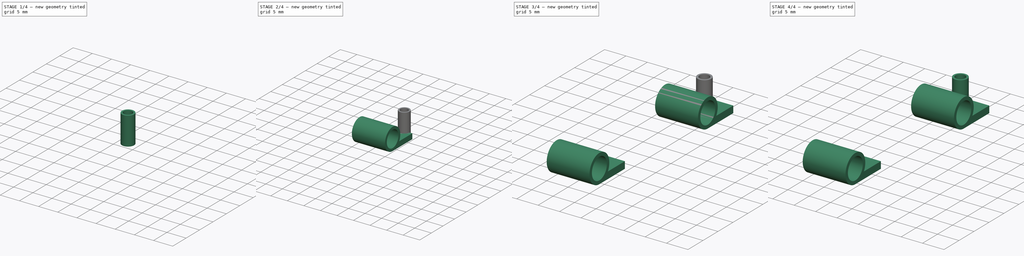
[diagram: build sequence overview — one tinted view per stage of 4, left to right]
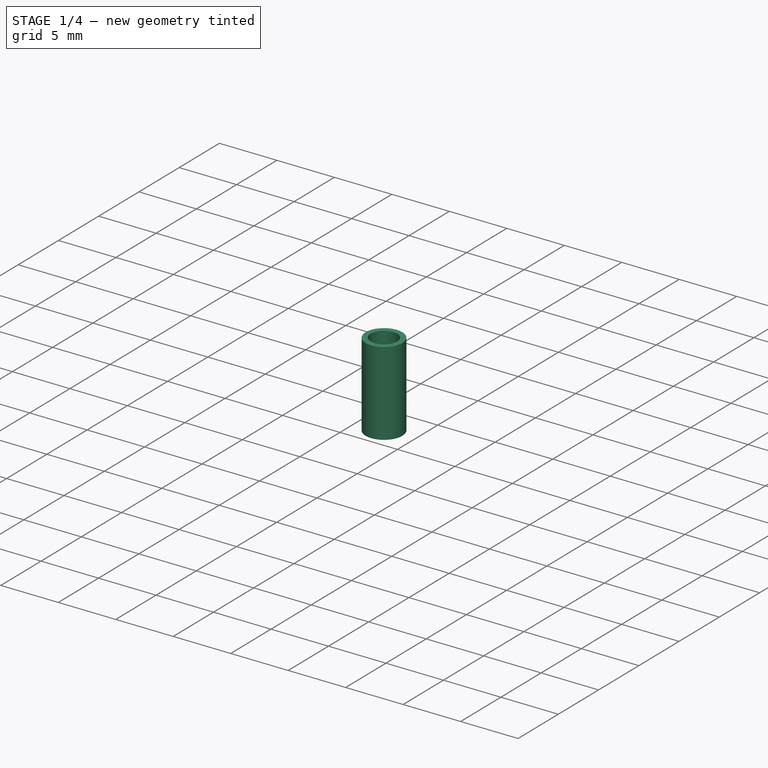
[diagram: stage 1 of 4 — iso view after this stage's code; geometry added in this stage tinted green]
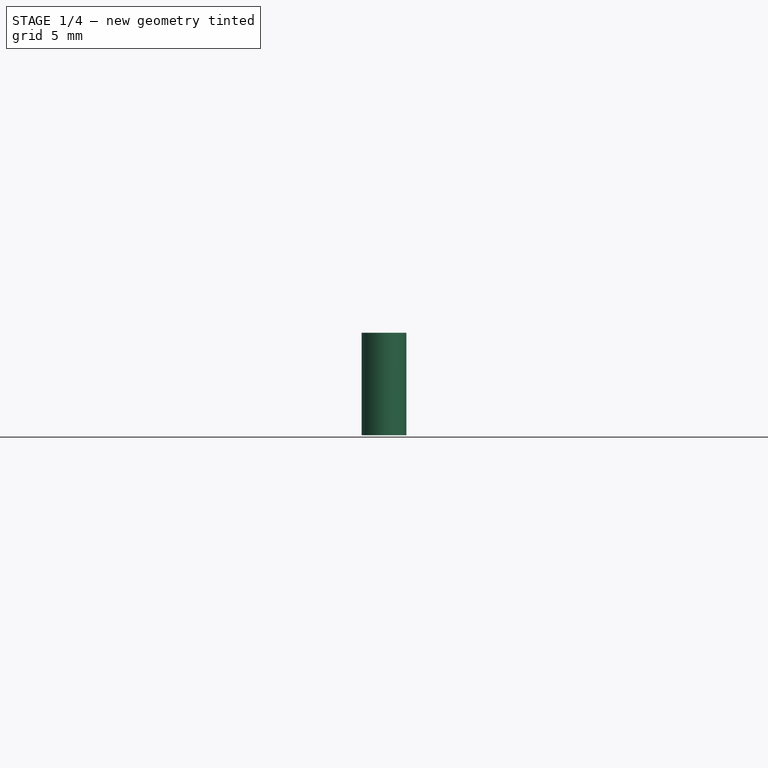
[diagram: stage 1 of 4 — front view after this stage's code; geometry added in this stage tinted green]
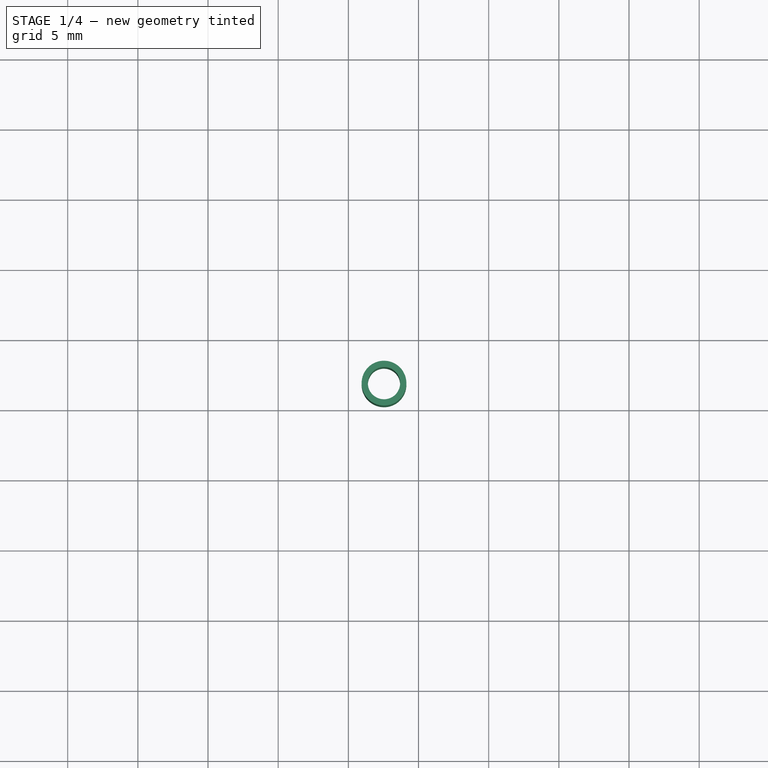
[diagram: stage 1 of 4 — top view after this stage's code; geometry added in this stage tinted green]
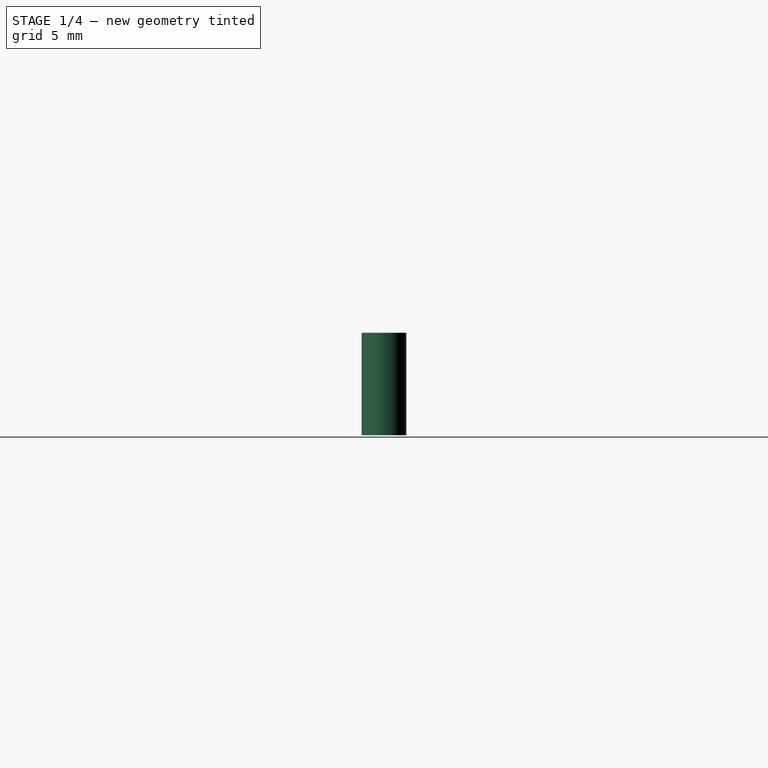
[diagram: stage 1 of 4 — right view after this stage's code; geometry added in this stage tinted green]
FCSTD DOCUMENT  (FreeCAD 0.19R)
Label: ESP32-S2_TFT_Feather_full
License: All rights reserved
LicenseURL: http://en.wikipedia.org/wiki/All_rights_reserved
objects: PartDesign::Body×8, PartDesign::FeatureBase×6, Sketcher::SketchObject×3, PartDesign::Pad×3, Part::Feature×2, App::FeaturePython×2, PartDesign::Hole×1, Part::FeaturePython×1
note: 28 computed .brp shape members not serialized (recipe doc carries the construction recipe); baked Part::Feature solids carry a one-line shape summary decoded from their .brp

FEATURE [Part::Feature] Feature  label="5300 ESP32-S2 TFT Feather"
  Placement = pos=(17.4187,1.81213,-35.822) rot=(0,0,1;0rad)
  shape: bbox 51.89 x 22.87 x 8.932 mm, 3634 faces, 158 solids (baked)
FEATURE [Part::Feature] Feature001  label="PCB"
  Placement = pos=(0,50,0) rot=(0,0,1;0rad)
  shape: bbox 51.89 x 22.87 x 8.932 mm, 3634 faces, 158 solids (baked)
FEATURE [Sketcher::SketchObject] Sketch
  FullyConstrained = true
  MapMode = 5
  Support = -> [XY_Plane]
  sketch-geometry (2):
    g0: Circle CenterX=2.54 CenterY=1.84 CenterZ=0 NormalX=0 NormalY=0 NormalZ=1 AngleXU=0 Radius=1.595
    g1: Circle CenterX=2.54 CenterY=1.84 CenterZ=0 NormalX=0 NormalY=0 NormalZ=1 AngleXU=0 Radius=1.15
  constraints (5):
    c: DistanceX(g0) = 2.54
    c: DistanceY(g0) = 1.84
    c: Diameter(g0) = 3.19
    c: Coincident(g1,g0)
    c: Diameter(g1) = 2.3
FEATURE [PartDesign::Pad] Pad
  Direction = (1,1,1)
  Length = 7.3
  Length2 = 100
  Profile = -> Sketch
  Type = 0
FEATURE [PartDesign::Pad] Pad001
  BaseFeature = -> Pad
  Direction = (1,1,1)
  Length = 7.2
  Length2 = 100
  Profile = -> Sketch
  Type = 0
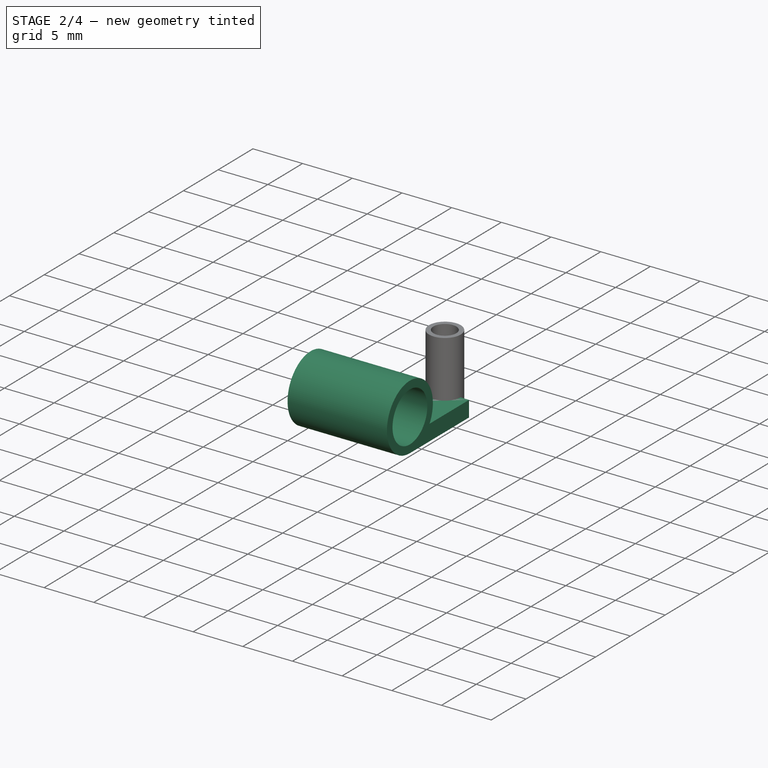
[diagram: stage 2 of 4 — iso view after this stage's code; geometry added in this stage tinted green]
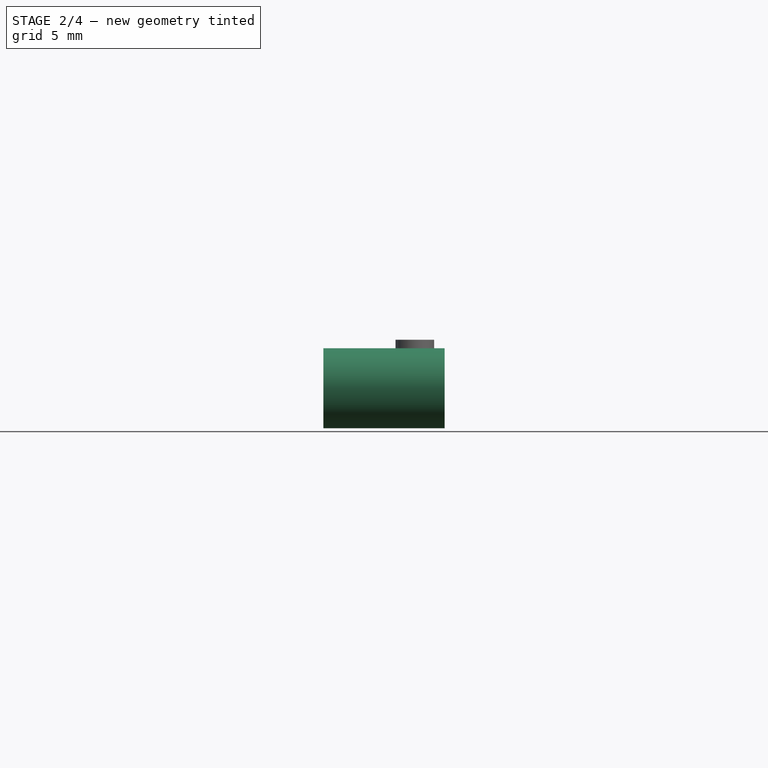
[diagram: stage 2 of 4 — front view after this stage's code; geometry added in this stage tinted green]
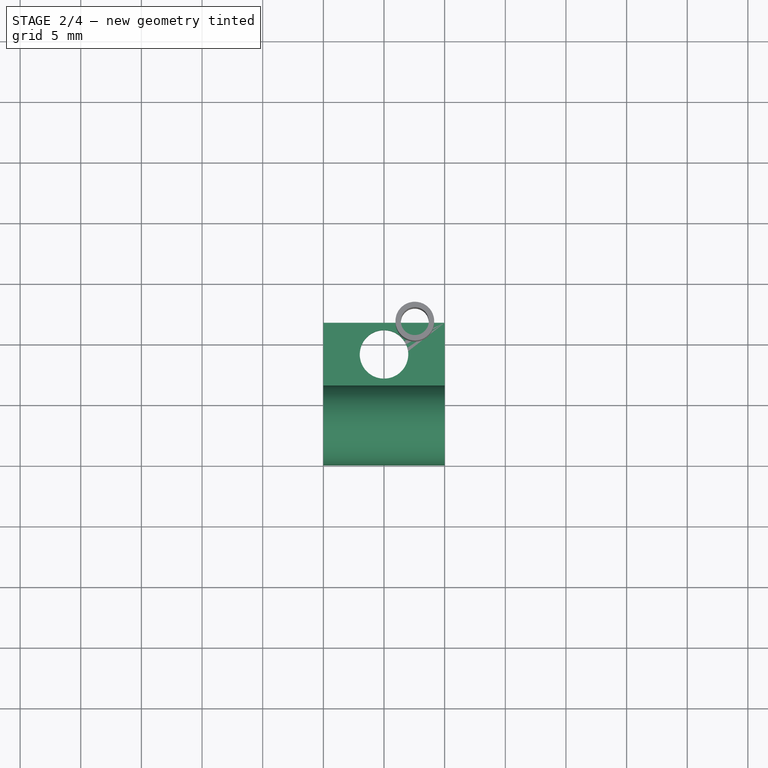
[diagram: stage 2 of 4 — top view after this stage's code; geometry added in this stage tinted green]
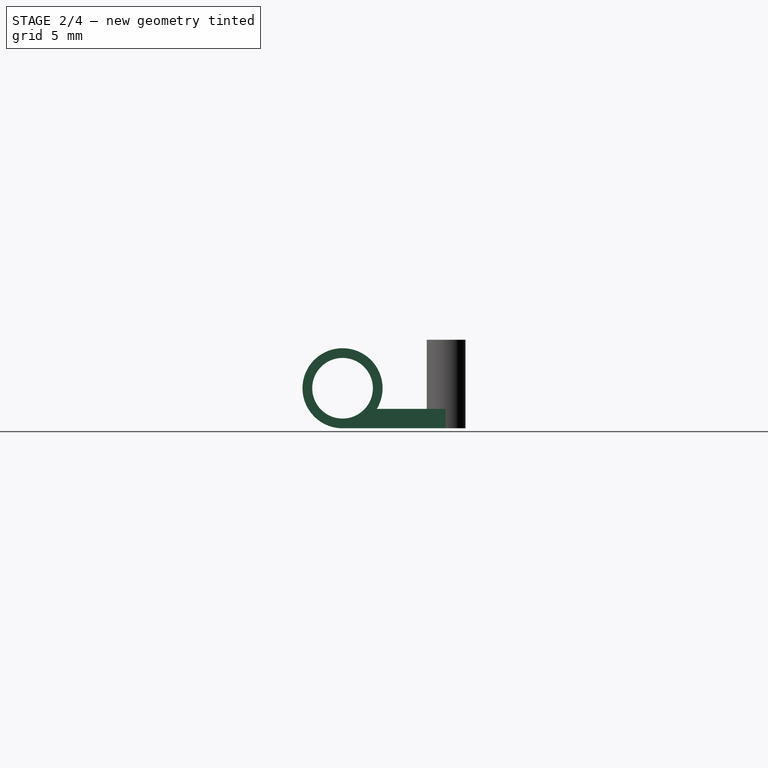
[diagram: stage 2 of 4 — right view after this stage's code; geometry added in this stage tinted green]
FEATURE [PartDesign::Body] Body002  label="Distanzhülse 3"
  BaseFeature = -> Pad001
  Group = -> [Clone001]
  Origin = -> Origin002
  Placement = pos=(20,-20,0) rot=(0,0,1;0rad)
  Tip = -> Clone001
FEATURE [PartDesign::FeatureBase] Clone002
  BaseFeature = -> Body
FEATURE [PartDesign::Body] Body003  label="Distanzhülse 4"
  BaseFeature = -> Body
  Group = -> [Clone002]
  Origin = -> Origin003
  Placement = pos=(30,-20,0) rot=(0,0,1;0rad)
  Tip = -> Clone002
FEATURE [Sketcher::SketchObject] Sketch001
  FullyConstrained = true
  MapMode = 5
  Placement = pos=(0,0,0) rot=(0.57735,0.57735,0.57735;2.0944rad)
  Support = -> [YZ_Plane004]
  sketch-geometry (6):
    g0: LineSegment StartX=1.8 StartY=0 StartZ=0 EndX=-6.7 EndY=0 EndZ=0
    g1: LineSegment StartX=-6.7 StartY=0 StartZ=0 EndX=-6.7 EndY=0.8 EndZ=0
    g2: LineSegment StartX=-3.87157 StartY=1.6 StartZ=0 EndX=1.8 EndY=1.6 EndZ=0
    g3: LineSegment StartX=1.8 StartY=1.6 StartZ=0 EndX=1.8 EndY=0 EndZ=0
    g4: ArcOfCircle CenterX=-6.7 CenterY=3.3 CenterZ=0 NormalX=0 NormalY=0 NormalZ=1 AngleXU=0 Radius=3.3 StartAngle=5.742 EndAngle=10.9956
    g5: Circle CenterX=-6.7 CenterY=3.3 CenterZ=0 NormalX=0 NormalY=0 NormalZ=1 AngleXU=0 Radius=2.5
  constraints (18):
    c: Coincident(g0,g1)
    c: Coincident(g2,g3)
    c: Coincident(g3,g0)
    c: Horizontal(g0)
    c: Horizontal(g2)
    c: Vertical(g1)
    c: Vertical(g3)
    c: PointOnObject(g0,g-1)
    c: DistanceX(g-1,g0) = 1.8
    c: DistanceX(g0,g0) = 8.5
    c: DistanceY(g0,g2) = 1.6
    c: Coincident(g5,g4)
    c: Vertical(g0,g4)
    c: Radius(g4) = 3.3
    c: Radius(g5) = 2.5
    c: PointOnObject(g1,g5)
    c: Coincident(g4,g2)
    c: Coincident(g4,g0)
FEATURE [PartDesign::Pad] Pad002
  Direction = (1,1,1)
  Length = 10
  Length2 = 100
  Midplane = true
  Placement = pos=(0,0,0) rot=(0.57735,0.57735,0.57735;2.0944rad)
  Profile = -> Sketch001
  Type = 0
FEATURE [Sketcher::SketchObject] Sketch002
  FullyConstrained = true
  MapMode = 5
  Placement = pos=(-4e-16,7e-16,1.6) rot=(0,0,-1;1.5708rad)
  Support = -> [Pad002]
  sketch-geometry (1):
    g0: Circle CenterX=0.8 CenterY=0 CenterZ=0 NormalX=0 NormalY=0 NormalZ=1 AngleXU=0 Radius=2.1
  constraints (3):
    c: Horizontal(g0,g-1)
    c: DistanceX(g-1,g0) = 0.8
    c: Radius(g0) = 2.1
FEATURE [PartDesign::Hole] Hole
  BaseFeature = -> Pad002
  Depth = 25
  DepthType = 0
  Diameter = 4
  DrillForDepth = false
  DrillPoint = 1
  DrillPointAngle = 118
  HoleCutCountersinkAngle = 90
  HoleCutCustomValues = false
  HoleCutDepth = 0
  HoleCutDiameter = 6.1
  HoleCutType = 0
  ModelActualThread = false
  Placement = pos=(0,0,0) rot=(0.57735,0.57735,0.57735;2.0944rad)
  Profile = -> Sketch002
  Tapered = false
  TaperedAngle = 90
  ThreadAngle = 0
  ThreadClass = 0
  ThreadCutOffInner = 0
  ThreadCutOffOuter = 0
  ThreadDirection = 0
  ThreadFit = 0
  ThreadPitch = 0
  ThreadSize = 0
  ThreadType = 0
  Threaded = false
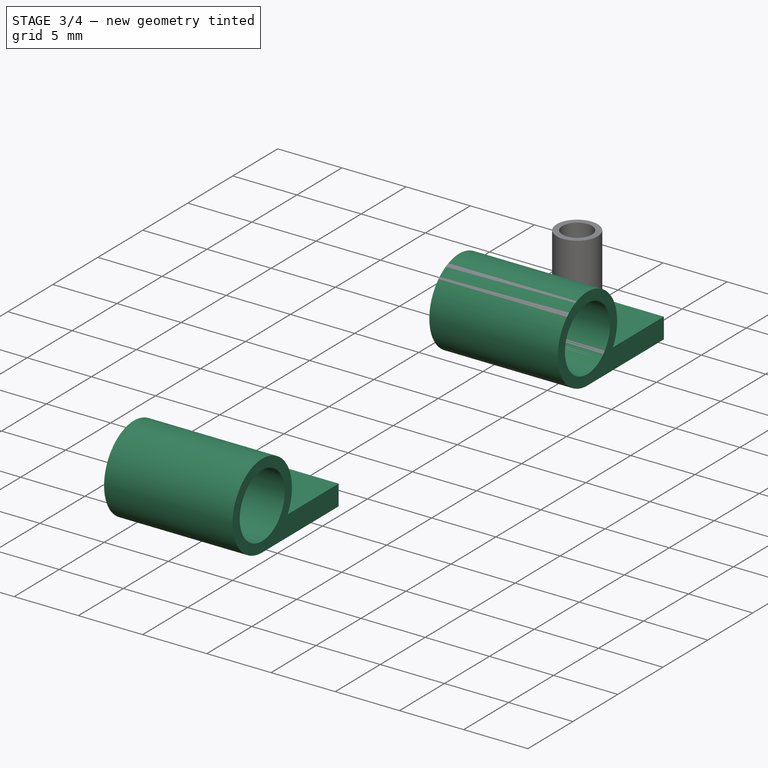
[diagram: stage 3 of 4 — iso view after this stage's code; geometry added in this stage tinted green]
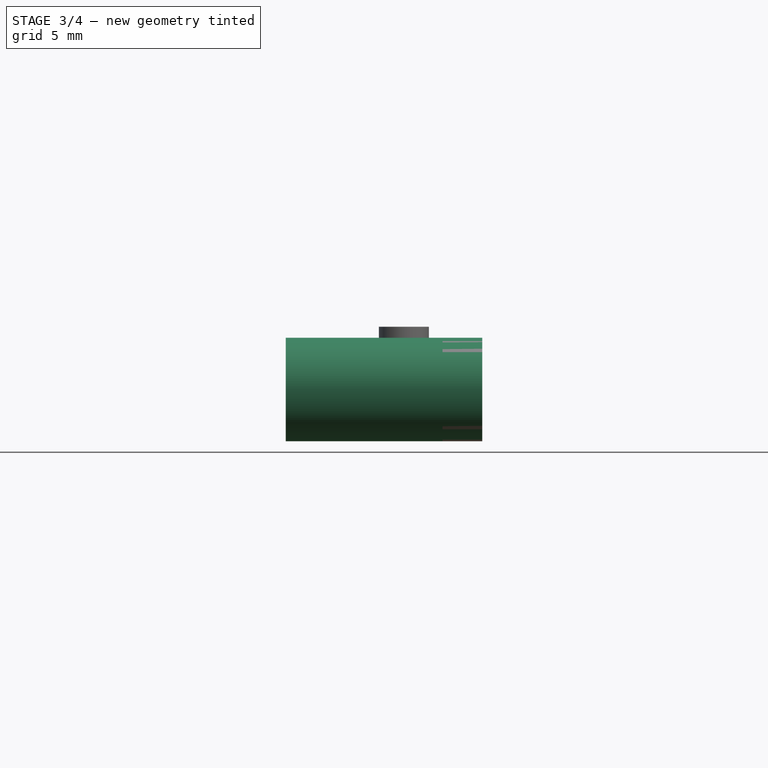
[diagram: stage 3 of 4 — front view after this stage's code; geometry added in this stage tinted green]
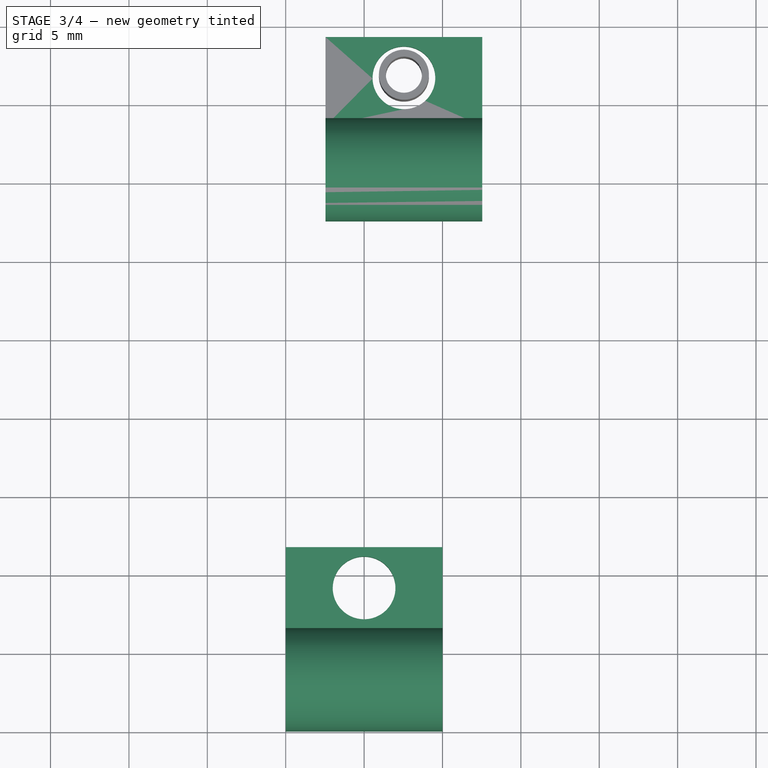
[diagram: stage 3 of 4 — top view after this stage's code; geometry added in this stage tinted green]
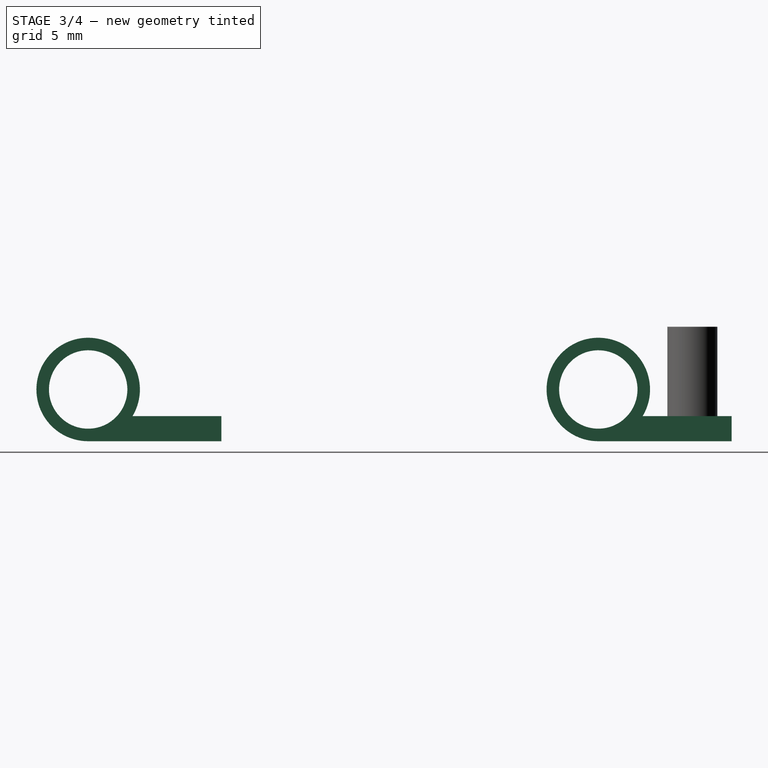
[diagram: stage 3 of 4 — right view after this stage's code; geometry added in this stage tinted green]
FEATURE [PartDesign::Body] Body004  label="Hellermann Befestigungschelle 211-60019 1"
  Group = -> [Sketch001,Pad002,Sketch002,Hole]
  Origin = -> Origin004
  Tip = -> Hole
FEATURE [PartDesign::FeatureBase] Clone003
  BaseFeature = -> Body004
  Placement = pos=(2.54,2.54,0) rot=(0,0,1;0rad)
FEATURE [PartDesign::Body] Body005  label="Hellermann Befestigungschelle 211-60019 2"
  BaseFeature = -> Body004
  Group = -> [Clone003]
  Origin = -> Origin005
  Placement = pos=(20,-30,0) rot=(0,0,1;0rad)
  Tip = -> Clone003
FEATURE [PartDesign::FeatureBase] Clone004
  BaseFeature = -> Body004
  Placement = pos=(2.54,2.54,0) rot=(0,0,1;0rad)
FEATURE [PartDesign::Body] Body006  label="Hellermann Befestigungschelle 211-60019 3"
  BaseFeature = -> Body004
  Group = -> [Clone004]
  Origin = -> Origin006
  Placement = pos=(40,-30,0) rot=(0,0,1;0rad)
  Tip = -> Clone004
FEATURE [PartDesign::FeatureBase] Clone005
  BaseFeature = -> Body004
  Placement = pos=(0,-30,0) rot=(0,0,1;0rad)
FEATURE [PartDesign::Body] Body007  label="Hellermann Befestigungschelle 211-60019 004"
  Group = -> [Clone005]
  Origin = -> Origin007
  Placement = pos=(60,0,0) rot=(0,0,1;0rad)
  Tip = -> Clone005
FEATURE [Part::FeaturePython] _300_ESP32_S2_TFT_Feather_001  label="5300 ESP32-S2 TFT Feather_001"  # a2plus imported part (geometry in sourceFile) (typed FeaturePython)
  Placement = pos=(17.4187,1.81213,-35.822) rot=(0,0,1;0rad)
  a2p_Version = 0.4.60
  fixedPosition = false
  localSourceObject = Feature
  objectType = a2pPart
  sourceFile = converted
  subassemblyImport = false
  timeLastImport = 1.67631e+09
  updateColors = true
FEATURE [App::FeaturePython] planeCoincident_001  label="planeCoincident_001__5300 ESP32-S2 TFT Feather_001"  # a2plus constraint (typed FeaturePython)
  Object1 = Clone002
  Object2 = _300_ESP32_S2_TFT_Feather_001
  ParentTreeObject = -> Clone002
  SubElement1 = Face2
  SubElement2 = Face9
  Suppressed = false
  Type = plane
  directionConstraint = 0
  offset = 0
FEATURE [App::FeaturePython] planeCoincident_001_mirror  label="planeCoincident_001__Clone002"  # a2plus constraint (typed FeaturePython)
  Object1 = Clone002
  Object2 = _300_ESP32_S2_TFT_Feather_001
  ParentTreeObject = -> _300_ESP32_S2_TFT_Feather_001
  SubElement1 = Face2
  SubElement2 = Face9
  Suppressed = false
  Type = plane
  directionConstraint = 0
  offset = 0
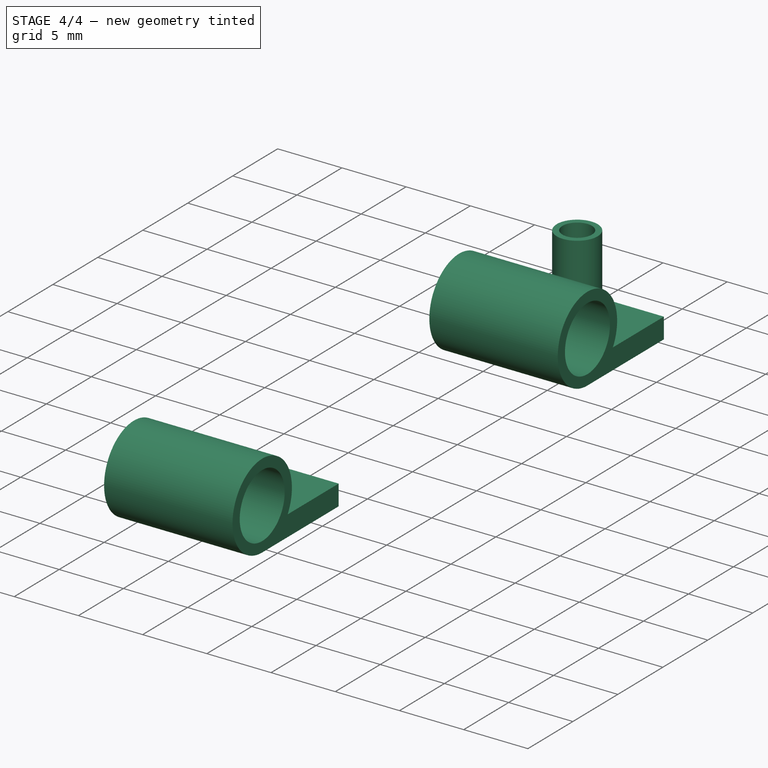
[diagram: stage 4 of 4 — iso view after this stage's code; geometry added in this stage tinted green]
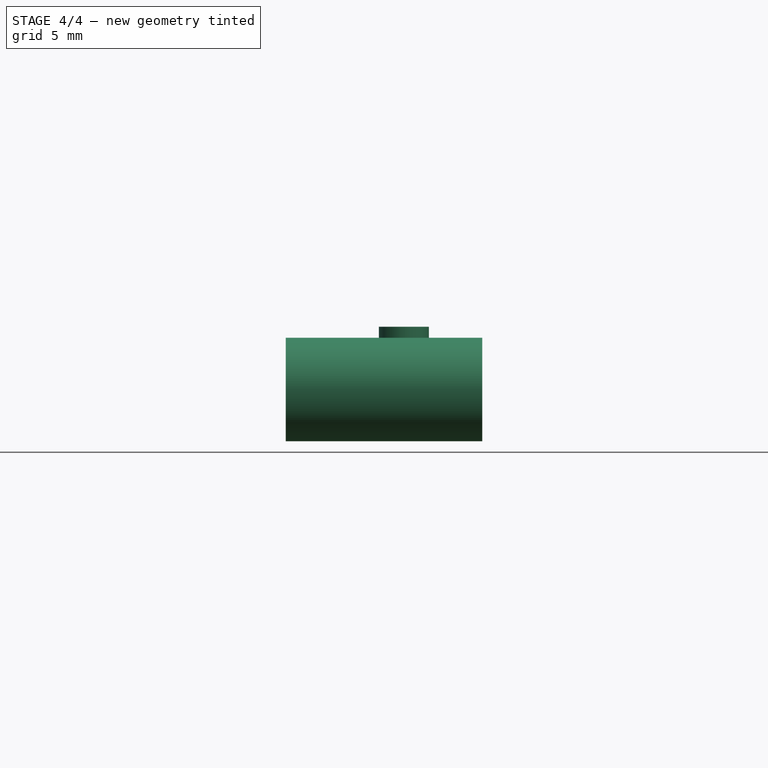
[diagram: stage 4 of 4 — front view after this stage's code; geometry added in this stage tinted green]
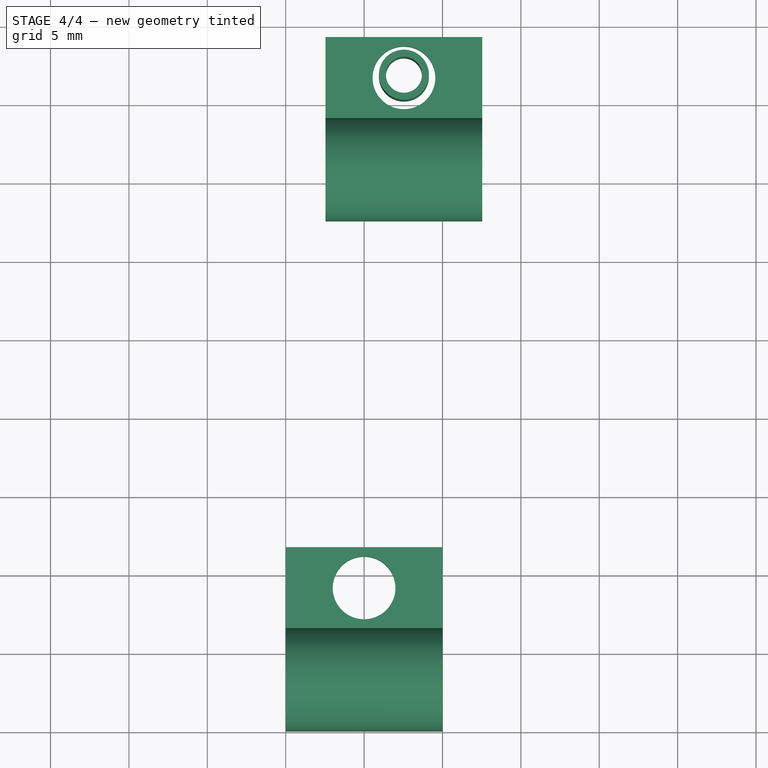
[diagram: stage 4 of 4 — top view after this stage's code; geometry added in this stage tinted green]
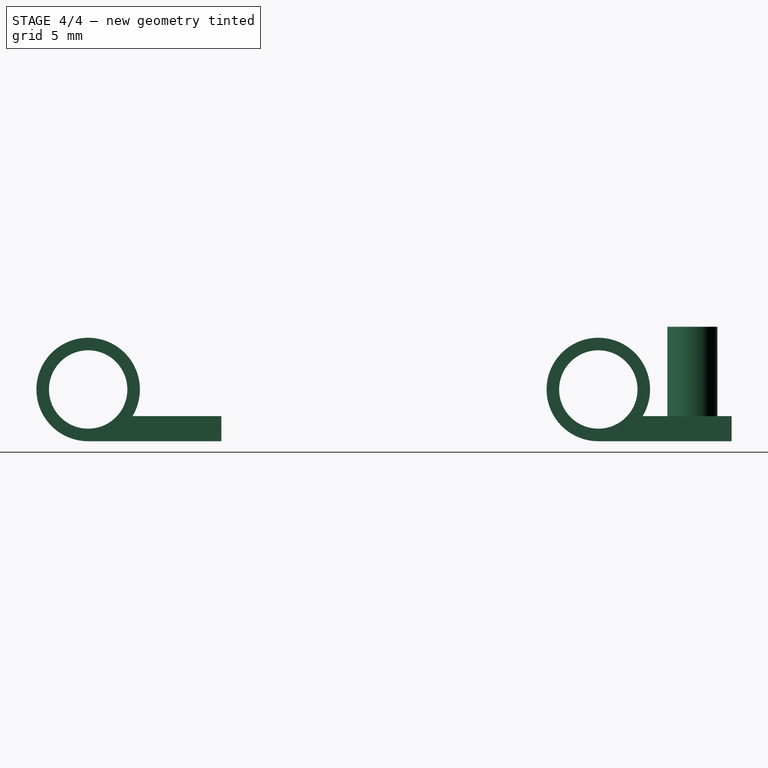
[diagram: stage 4 of 4 — right view after this stage's code; geometry added in this stage tinted green]
FEATURE [PartDesign::Body] Body  label="Distanzhülse 1"
  Group = -> [Sketch,Pad,Pad001]
  Origin = -> Origin
  Tip = -> Pad001
FEATURE [PartDesign::FeatureBase] Clone
  BaseFeature = -> Body
FEATURE [PartDesign::Body] Body001  label="Distanzhülse 2"
  BaseFeature = -> Body
  Group = -> [Clone]
  Origin = -> Origin001
  Placement = pos=(10,-20,0) rot=(0,0,1;0rad)
  Tip = -> Clone
FEATURE [PartDesign::FeatureBase] Clone001
  BaseFeature = -> Pad001
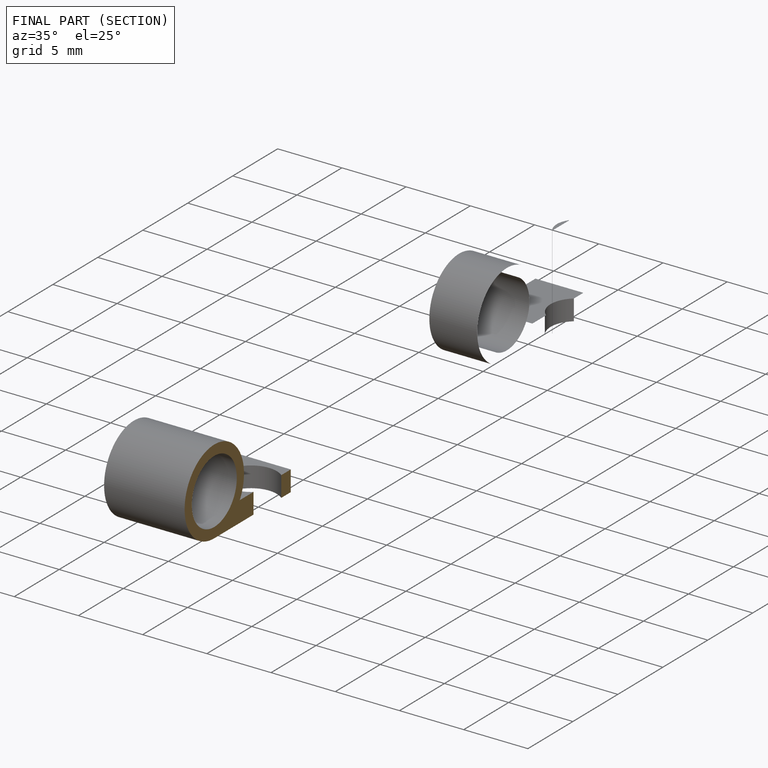
[diagram: finished part — half-section view (interior)]
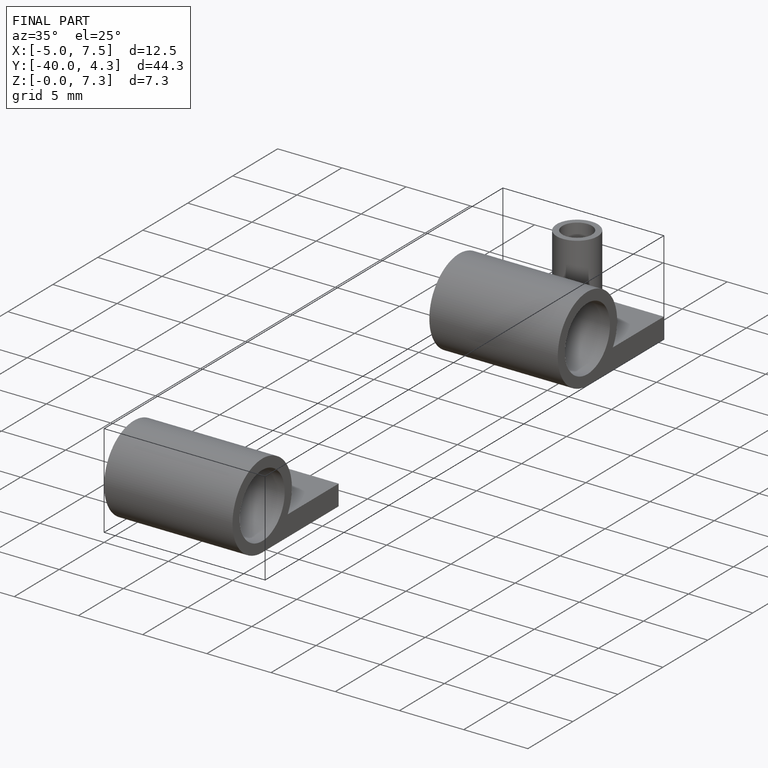
[diagram: finished part — iso view with bounding-box wireframe]
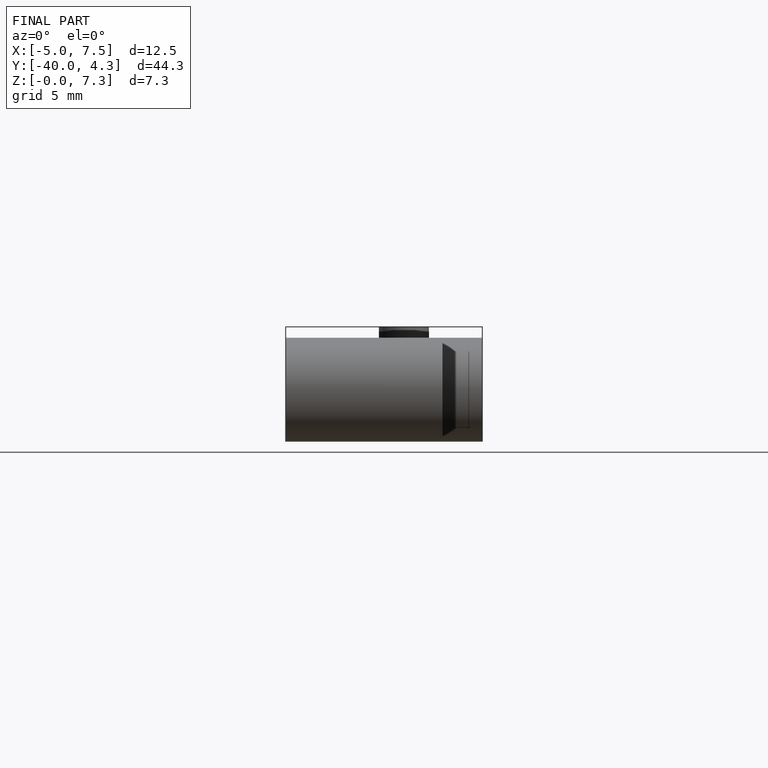
[diagram: finished part — front view with bounding-box wireframe]
